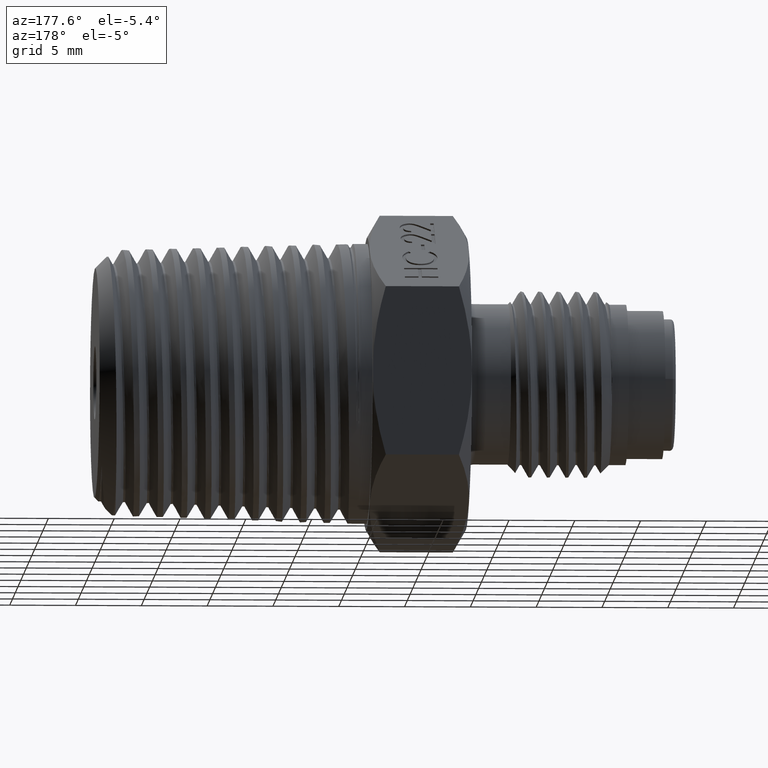
[diagram: clean part render]
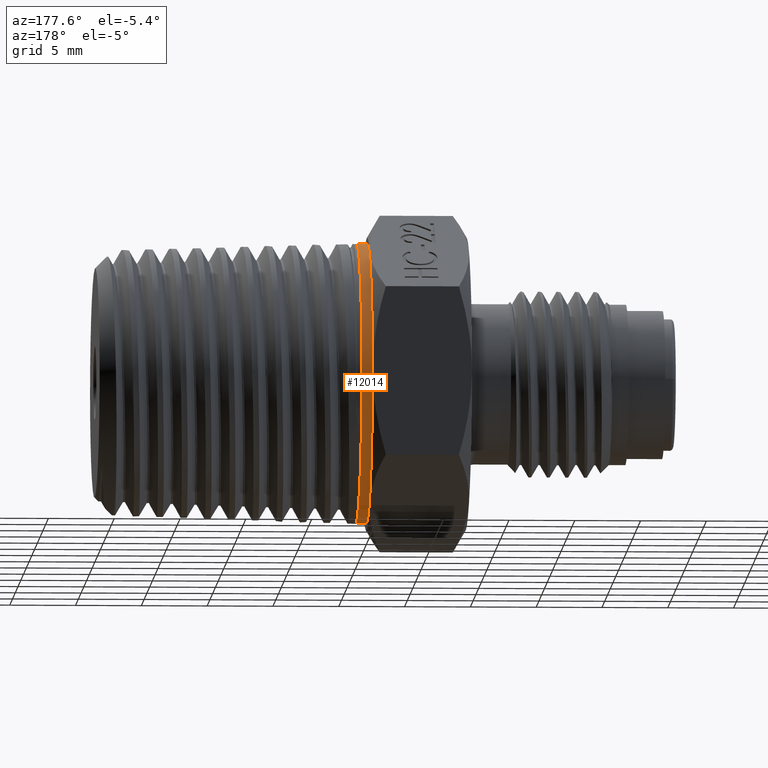
[diagram: same view with one face highlighted and labeled with its STEP entity id]
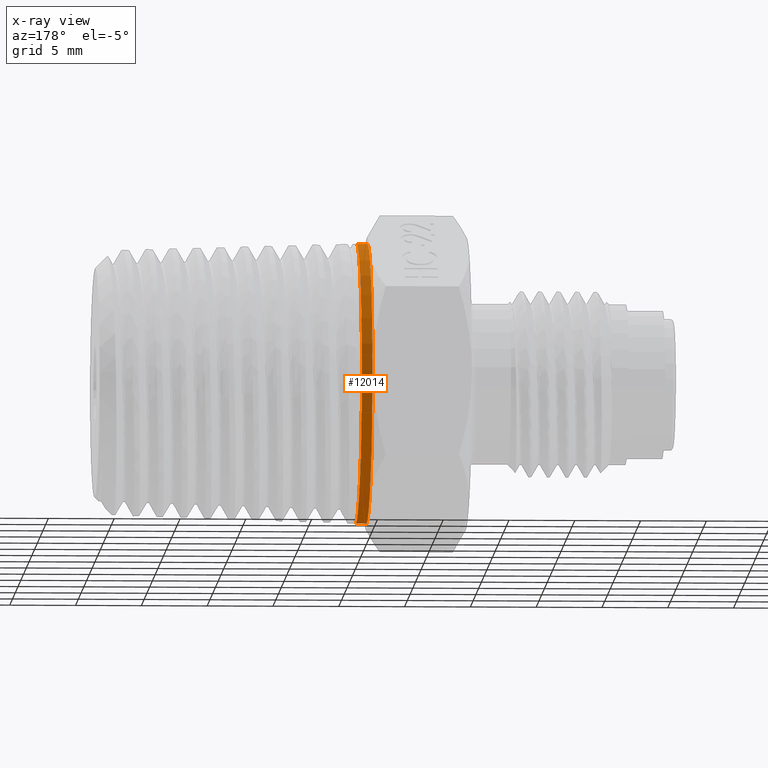
[diagram: x-ray of the same camera — body ghosted, the highlighted face saturated]
A machine part, auxiliary view. The second image highlights one B-rep face of the part: STEP entity #12014.
The next image is the same camera in x-ray: the body ghosted, the highlighted face saturated — about 0% of this face is hidden behind the body in this view.
In plain terms, the highlighted cylindrical surface (partial cylindrical patch) has radius 10.668 mm, axis along (1, 0, -0).
Its self-contained STEP definition (entity closure, byte-faithful):
#40 = CARTESIAN_POINT ( 'NONE',  ( -0.8129999999999997229, -9.501728352884455583E-17, 0.4200000000000003175 ) ) ;
#320 = EDGE_CURVE ( 'NONE', #4465, #4480, #12266, .T. ) ;
#1420 = EDGE_CURVE ( 'NONE', #2643, #4480, #2704, .T. ) ;
#1968 = EDGE_LOOP ( 'NONE', ( #11708, #5685, #7601, #13315 ) ) ;
#2439 = CARTESIAN_POINT ( 'NONE',  ( 0.1000000000000000056, 1.836970198721021429E-17, 7.287509615069049373E-17 ) ) ;
#2643 = VERTEX_POINT ( 'NONE', #40 ) ;
#2704 = LINE ( 'NONE', #6189, #6892 ) ;
#3127 = CIRCLE ( 'NONE', #12102, 0.4199999999999999845 ) ;
#3385 = CARTESIAN_POINT ( 'NONE',  ( -0.7814999999999999725, -1.435592210300478321E-16, 3.420088631107572815E-16 ) ) ;
#4058 = DIRECTION ( 'NONE',  ( 1.000000000000000000, 1.836970198721021306E-16, -3.053134055134053237E-16 ) ) ;
#4423 = EDGE_CURVE ( 'NONE', #5501, #2643, #3127, .T. ) ;
#4465 = VERTEX_POINT ( 'NONE', #6011 ) ;
#4480 = VERTEX_POINT ( 'NONE', #7180 ) ;
#4963 = DIRECTION ( 'NONE',  ( 1.000000000000000000, 1.836970198721021306E-16, -3.053134055134053237E-16 ) ) ;
#5113 = CARTESIAN_POINT ( 'NONE',  ( -0.8129999999999999449, -1.493456771560189923E-16, 3.516262353844295145E-16 ) ) ;
#5501 = VERTEX_POINT ( 'NONE', #8789 ) ;
#5685 = ORIENTED_EDGE ( 'NONE', *, *, #1420, .T. ) ;
#5938 = DIRECTION ( 'NONE',  ( -3.252199992457456212E-16, 0.000000000000000000, -1.000000000000000000 ) ) ;
#6011 = CARTESIAN_POINT ( 'NONE',  ( -0.7815000000000000835, -9.212405546585900037E-17, -0.4199999999999995959 ) ) ;
#6189 = CARTESIAN_POINT ( 'NONE',  ( 0.1000000000000001443, 6.980486755139903987E-17, 0.4200000000000000400 ) ) ;
#6892 = VECTOR ( 'NONE', #7271, 39.37007874015748143 ) ;
#7180 = CARTESIAN_POINT ( 'NONE',  ( -0.7814999999999998614, -1.435592210300478321E-16, 0.4200000000000003175 ) ) ;
#7271 = DIRECTION ( 'NONE',  ( 1.000000000000000000, 1.836970198721021306E-16, -3.053134055134053237E-16 ) ) ;
#7601 = ORIENTED_EDGE ( 'NONE', *, *, #320, .F. ) ;
#7646 = VECTOR ( 'NONE', #4058, 39.37007874015748143 ) ;
#7686 = CYLINDRICAL_SURFACE ( 'NONE', #8397, 0.4199999999999999845 ) ;
#8057 = LINE ( 'NONE', #12463, #7646 ) ;
#8397 = AXIS2_PLACEMENT_3D ( 'NONE', #2439, #13229, #5938 ) ;
#8789 = CARTESIAN_POINT ( 'NONE',  ( -0.8130000000000000560, -1.493456771560189923E-16, -0.4199999999999995959 ) ) ;
#9175 = DIRECTION ( 'NONE',  ( -3.252199992457456212E-16, 0.000000000000000000, -1.000000000000000000 ) ) ;
#9681 = DIRECTION ( 'NONE',  ( 1.000000000000000000, 1.836970198721021306E-16, -3.053134055134053237E-16 ) ) ;
#9993 = AXIS2_PLACEMENT_3D ( 'NONE', #3385, #9681, #12904 ) ;
#11145 = EDGE_CURVE ( 'NONE', #5501, #4465, #8057, .T. ) ;
#11698 = FACE_OUTER_BOUND ( 'NONE', #1968, .T. ) ;
#11708 = ORIENTED_EDGE ( 'NONE', *, *, #4423, .T. ) ;
#12014 = ADVANCED_FACE ( 'NONE', ( #11698 ), #7686, .T. ) ;
#12102 = AXIS2_PLACEMENT_3D ( 'NONE', #5113, #4963, #9175 ) ;
#12266 = CIRCLE ( 'NONE', #9993, 0.4199999999999999845 ) ;
#12463 = CARTESIAN_POINT ( 'NONE',  ( 0.09999999999999986677, 1.836970198721021429E-17, -0.4199999999999998734 ) ) ;
#12904 = DIRECTION ( 'NONE',  ( -3.252199992457456212E-16, 0.000000000000000000, -1.000000000000000000 ) ) ;
#13229 = DIRECTION ( 'NONE',  ( 1.000000000000000000, 1.836970198721021306E-16, -3.053134055134053237E-16 ) ) ;
#13315 = ORIENTED_EDGE ( 'NONE', *, *, #11145, .F. ) ;